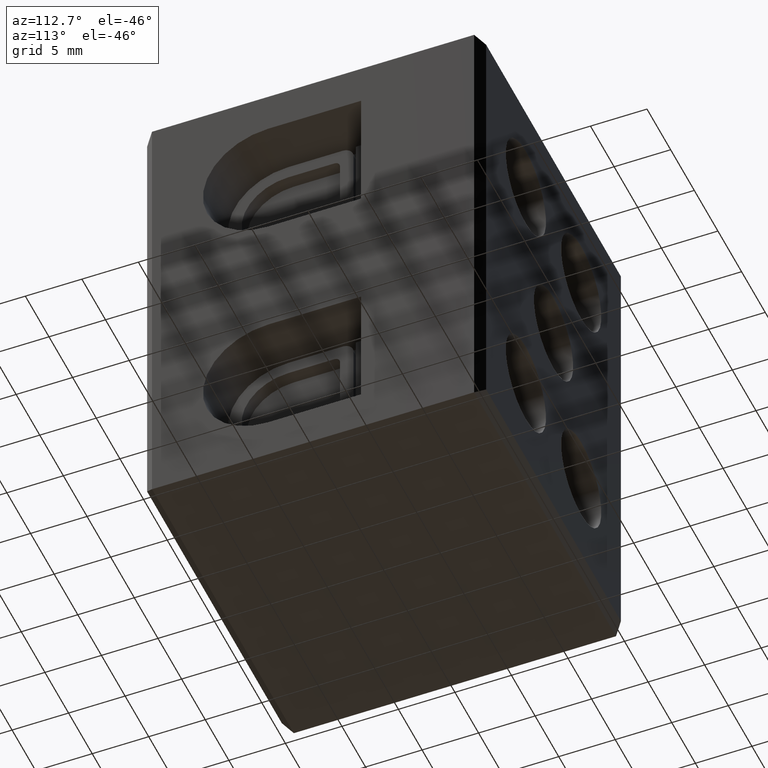
[diagram: clean part render]
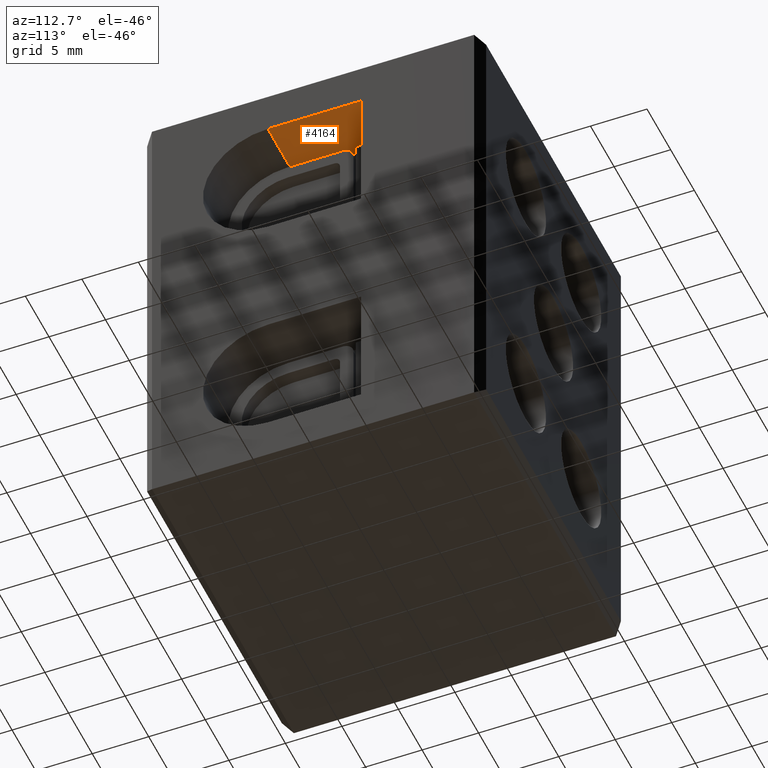
[diagram: same view with one face highlighted and labeled with its STEP entity id]
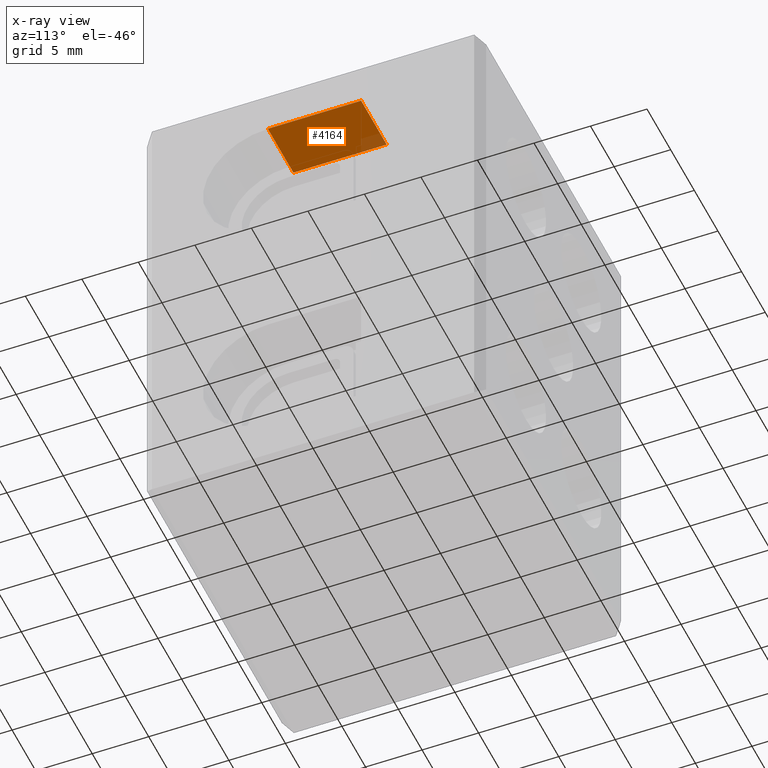
[diagram: x-ray of the same camera — body ghosted, the highlighted face saturated]
A machine part, auxiliary view. The second image highlights one B-rep face of the part: STEP entity #4164.
The next image is the same camera in x-ray: the body ghosted, the highlighted face saturated — about 6% of this face is hidden behind the body in this view.
In plain terms, the highlighted planar face has unit normal (0, 0, 1).
Its self-contained STEP definition (entity closure, byte-faithful):
#167 = EDGE_LOOP ( 'NONE', ( #515, #556, #548, #549 ) ) ;
#515 = ORIENTED_EDGE ( 'NONE', *, *, #4588, .F. ) ;
#548 = ORIENTED_EDGE ( 'NONE', *, *, #4614, .T. ) ;
#549 = ORIENTED_EDGE ( 'NONE', *, *, #4562, .T. ) ;
#556 = ORIENTED_EDGE ( 'NONE', *, *, #4528, .F. ) ;
#1688 = VERTEX_POINT ( 'NONE', #2108 ) ;
#1713 = VERTEX_POINT ( 'NONE', #2078 ) ;
#1720 = VERTEX_POINT ( 'NONE', #2110 ) ;
#1726 = VERTEX_POINT ( 'NONE', #2100 ) ;
#2078 = CARTESIAN_POINT ( 'NONE',  ( 24.59999999999999400, 19.25000000000000400, -3.750000000000003600 ) ) ;
#2100 = CARTESIAN_POINT ( 'NONE',  ( 30.00000000000000000, 11.00000000000000000, -3.750000000000003600 ) ) ;
#2108 = CARTESIAN_POINT ( 'NONE',  ( 24.59999999999999100, 11.00000000000000000, -3.750000000000003600 ) ) ;
#2110 = CARTESIAN_POINT ( 'NONE',  ( 30.00000000000000000, 19.25000000000000000, -3.750000000000003600 ) ) ;
#2962 = DIRECTION ( 'NONE',  ( -1.000000000000000000, -0.0000000000000000000, 0.0000000000000000000 ) ) ;
#2974 = CARTESIAN_POINT ( 'NONE',  ( 52.00000000000001400, 19.25000000000000400, -3.750000000000003600 ) ) ;
#2992 = LINE ( 'NONE', #2974, #6186 ) ;
#3079 = CARTESIAN_POINT ( 'NONE',  ( 52.00000000000001400, 11.00000000000000000, -3.750000000000003600 ) ) ;
#3108 = DIRECTION ( 'NONE',  ( -1.000000000000000000, -0.0000000000000000000, -0.0000000000000000000 ) ) ;
#3117 = LINE ( 'NONE', #3079, #6227 ) ;
#3444 = PLANE ( 'NONE',  #6693 ) ;
#3455 = FACE_OUTER_BOUND ( 'NONE', #167, .T. ) ;
#3462 = DIRECTION ( 'NONE',  ( 1.000000000000000000, 0.0000000000000000000, -0.0000000000000000000 ) ) ;
#3468 = DIRECTION ( 'NONE',  ( 0.0000000000000000000, 0.0000000000000000000, 1.000000000000000000 ) ) ;
#3474 = CARTESIAN_POINT ( 'NONE',  ( 52.00000000000001400, 19.25000000000000000, -3.750000000000003600 ) ) ;
#4164 = ADVANCED_FACE ( 'NONE', ( #3455 ), #3444, .F. ) ;
#4528 = EDGE_CURVE ( 'NONE', #1720, #1713, #2992, .T. ) ;
#4562 = EDGE_CURVE ( 'NONE', #1726, #1688, #3117, .T. ) ;
#4588 = EDGE_CURVE ( 'NONE', #1713, #1688, #4945, .T. ) ;
#4614 = EDGE_CURVE ( 'NONE', #1720, #1726, #5000, .T. ) ;
#4928 = DIRECTION ( 'NONE',  ( 0.0000000000000000000, -1.000000000000000000, -0.0000000000000000000 ) ) ;
#4931 = CARTESIAN_POINT ( 'NONE',  ( 24.59999999999999100, 19.25000000000000000, -3.750000000000003600 ) ) ;
#4945 = LINE ( 'NONE', #4931, #6250 ) ;
#5000 = LINE ( 'NONE', #5013, #6313 ) ;
#5013 = CARTESIAN_POINT ( 'NONE',  ( 30.00000000000000000, 30.00000000000000000, -3.750000000000003600 ) ) ;
#5016 = DIRECTION ( 'NONE',  ( -0.0000000000000000000, -1.000000000000000000, 0.0000000000000000000 ) ) ;
#6186 = VECTOR ( 'NONE', #2962, 1000.000000000000000 ) ;
#6227 = VECTOR ( 'NONE', #3108, 1000.000000000000000 ) ;
#6250 = VECTOR ( 'NONE', #4928, 1000.000000000000000 ) ;
#6313 = VECTOR ( 'NONE', #5016, 1000.000000000000000 ) ;
#6693 = AXIS2_PLACEMENT_3D ( 'NONE', #3474, #3468, #3462 ) ;